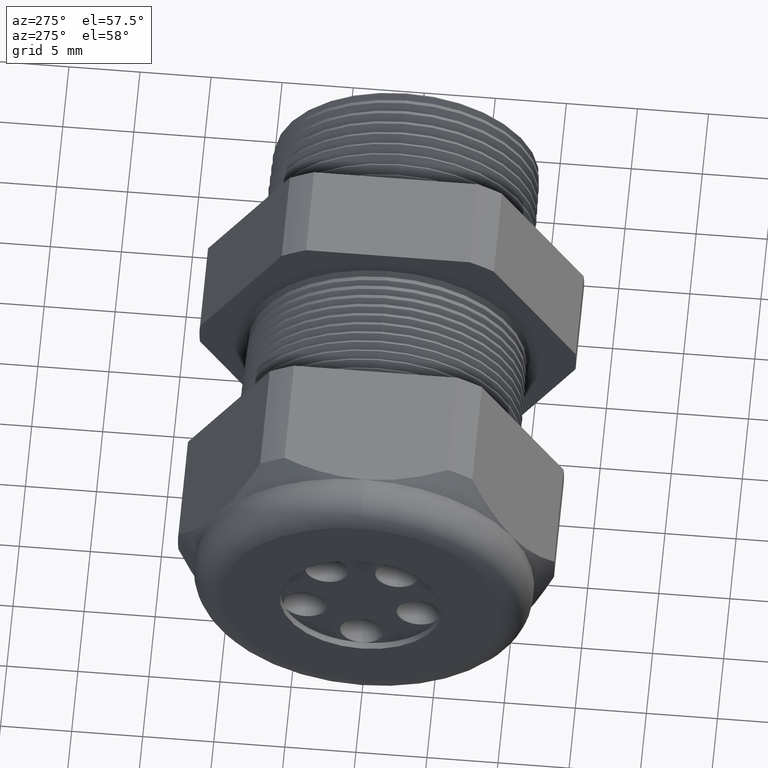
[diagram: clean part render]
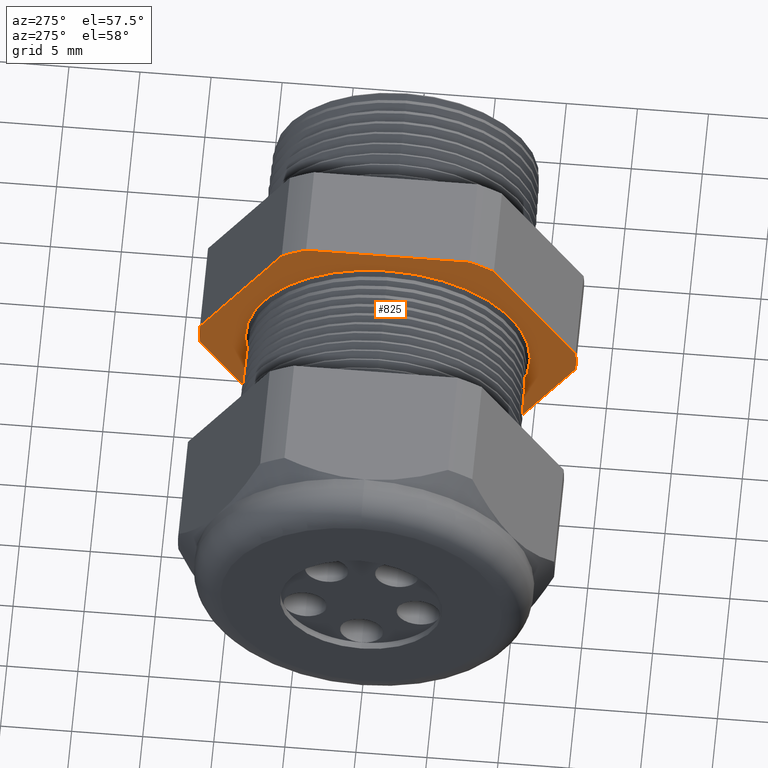
[diagram: same view with one face highlighted and labeled with its STEP entity id]
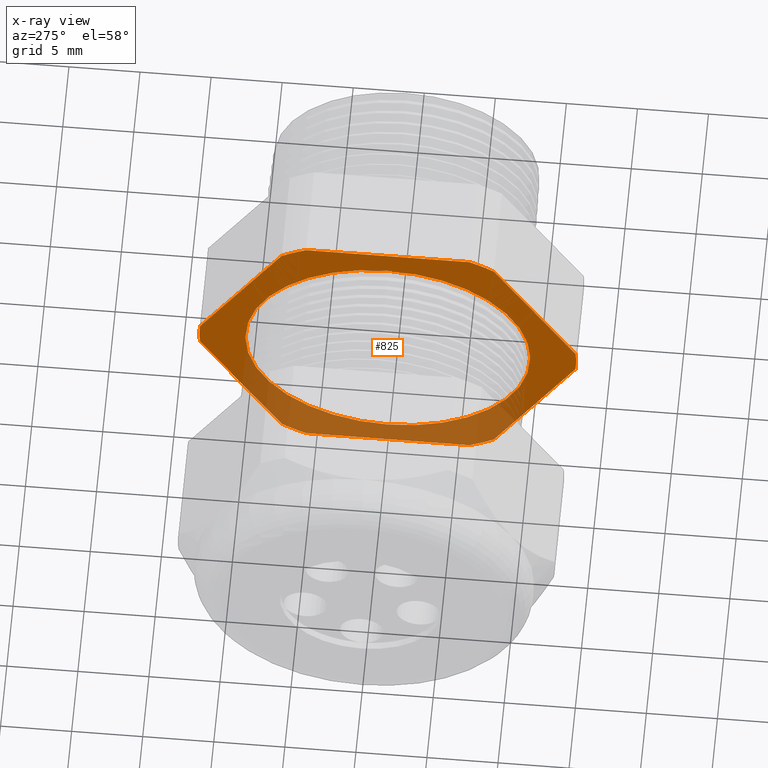
[diagram: x-ray of the same camera — body ghosted, the highlighted face saturated]
A machine part, auxiliary view. The second image highlights one B-rep face of the part: STEP entity #825.
The next image is the same camera in x-ray: the body ghosted, the highlighted face saturated — about 35% of this face is hidden behind the body in this view.
In plain terms, the highlighted planar face has unit normal (-1, 0, 0).
Its self-contained STEP definition (entity closure, byte-faithful):
#773 = EDGE_LOOP ( 'NONE', ( #826, #828 ) ) ;
#811 = VERTEX_POINT ( 'NONE', #3488 ) ;
#812 = ORIENTED_EDGE ( 'NONE', *, *, #813, .T. ) ;
#813 = EDGE_CURVE ( 'NONE', #811, #814, #3487, .T. ) ;
#814 = VERTEX_POINT ( 'NONE', #3482 ) ;
#815 = ORIENTED_EDGE ( 'NONE', *, *, #816, .T. ) ;
#816 = EDGE_CURVE ( 'NONE', #814, #817, #3481, .T. ) ;
#817 = VERTEX_POINT ( 'NONE', #3477 ) ;
#818 = ORIENTED_EDGE ( 'NONE', *, *, #819, .T. ) ;
#819 = EDGE_CURVE ( 'NONE', #817, #820, #3475, .T. ) ;
#820 = VERTEX_POINT ( 'NONE', #3476 ) ;
#821 = ORIENTED_EDGE ( 'NONE', *, *, #822, .T. ) ;
#822 = EDGE_CURVE ( 'NONE', #820, #823, #3536, .T. ) ;
#823 = VERTEX_POINT ( 'NONE', #3532 ) ;
#825 = ADVANCED_FACE ( 'NONE', ( #3531, #3530 ), #3529, .T. ) ;
#826 = ORIENTED_EDGE ( 'NONE', *, *, #827, .F. ) ;
#827 = EDGE_CURVE ( 'NONE', #1380, #1376, #3524, .T. ) ;
#828 = ORIENTED_EDGE ( 'NONE', *, *, #1371, .F. ) ;
#829 = EDGE_LOOP ( 'NONE', ( #830, #834, #837, #812, #815, #818, #821, #880, #883, #886, #889, #892 ) ) ;
#830 = ORIENTED_EDGE ( 'NONE', *, *, #831, .T. ) ;
#831 = EDGE_CURVE ( 'NONE', #832, #833, #3519, .T. ) ;
#832 = VERTEX_POINT ( 'NONE', #3515 ) ;
#833 = VERTEX_POINT ( 'NONE', #3514 ) ;
#834 = ORIENTED_EDGE ( 'NONE', *, *, #835, .T. ) ;
#835 = EDGE_CURVE ( 'NONE', #833, #836, #3513, .T. ) ;
#836 = VERTEX_POINT ( 'NONE', #3508 ) ;
#837 = ORIENTED_EDGE ( 'NONE', *, *, #838, .T. ) ;
#838 = EDGE_CURVE ( 'NONE', #836, #811, #3507, .T. ) ;
#880 = ORIENTED_EDGE ( 'NONE', *, *, #881, .T. ) ;
#881 = EDGE_CURVE ( 'NONE', #823, #882, #3580, .T. ) ;
#882 = VERTEX_POINT ( 'NONE', #3574 ) ;
#883 = ORIENTED_EDGE ( 'NONE', *, *, #884, .T. ) ;
#884 = EDGE_CURVE ( 'NONE', #882, #885, #3573, .T. ) ;
#885 = VERTEX_POINT ( 'NONE', #3569 ) ;
#886 = ORIENTED_EDGE ( 'NONE', *, *, #887, .T. ) ;
#887 = EDGE_CURVE ( 'NONE', #885, #888, #3633, .T. ) ;
#888 = VERTEX_POINT ( 'NONE', #3628 ) ;
#889 = ORIENTED_EDGE ( 'NONE', *, *, #890, .T. ) ;
#890 = EDGE_CURVE ( 'NONE', #888, #891, #3627, .T. ) ;
#891 = VERTEX_POINT ( 'NONE', #3623 ) ;
#892 = ORIENTED_EDGE ( 'NONE', *, *, #893, .T. ) ;
#893 = EDGE_CURVE ( 'NONE', #891, #832, #3622, .T. ) ;
#1371 = EDGE_CURVE ( 'NONE', #1376, #1380, #4271, .T. ) ;
#1376 = VERTEX_POINT ( 'NONE', #4256 ) ;
#1380 = VERTEX_POINT ( 'NONE', #4251 ) ;
#3471 = DIRECTION ( 'NONE',  ( 0.0000000000000000000, 0.0000000000000000000, 1.000000000000000000 ) ) ;
#3472 = DIRECTION ( 'NONE',  ( -1.000000000000000000, 0.0000000000000000000, 0.0000000000000000000 ) ) ;
#3473 = CARTESIAN_POINT ( 'NONE',  ( -0.5659055118110234400, 0.0000000000000000000, 0.0000000000000000000 ) ) ;
#3474 = AXIS2_PLACEMENT_3D ( 'NONE', #3473, #3472, #3471 ) ;
#3475 = CIRCLE ( 'NONE', #3474, 0.5217000000000000500 ) ;
#3476 = CARTESIAN_POINT ( 'NONE',  ( -0.5659055118110234400, -0.2938165587564942600, -0.4310947921287053300 ) ) ;
#3477 = CARTESIAN_POINT ( 'NONE',  ( -0.5659055118110234400, -0.2264307620443830900, -0.4700000000000000300 ) ) ;
#3478 = DIRECTION ( 'NONE',  ( 0.0000000000000000000, -1.000000000000000000, 0.0000000000000000000 ) ) ;
#3479 = VECTOR ( 'NONE', #3478, 39.37007874015748100 ) ;
#3480 = CARTESIAN_POINT ( 'NONE',  ( -0.5659055118110234400, 0.9399999999999999500, -0.4700000000000000300 ) ) ;
#3481 = LINE ( 'NONE', #3480, #3479 ) ;
#3482 = CARTESIAN_POINT ( 'NONE',  ( -0.5659055118110234400, 0.2264307620443831200, -0.4700000000000000300 ) ) ;
#3483 = DIRECTION ( 'NONE',  ( 0.0000000000000000000, 0.0000000000000000000, 1.000000000000000000 ) ) ;
#3484 = DIRECTION ( 'NONE',  ( -1.000000000000000000, 0.0000000000000000000, 0.0000000000000000000 ) ) ;
#3485 = CARTESIAN_POINT ( 'NONE',  ( -0.5659055118110234400, 0.0000000000000000000, 0.0000000000000000000 ) ) ;
#3486 = AXIS2_PLACEMENT_3D ( 'NONE', #3485, #3484, #3483 ) ;
#3487 = CIRCLE ( 'NONE', #3486, 0.5217000000000000500 ) ;
#3488 = CARTESIAN_POINT ( 'NONE',  ( -0.5659055118110234400, 0.2938165587564949800, -0.4310947921287048800 ) ) ;
#3504 = DIRECTION ( 'NONE',  ( 0.0000000000000000000, -0.4999999999999998300, -0.8660254037844388200 ) ) ;
#3505 = VECTOR ( 'NONE', #3504, 39.37007874015748100 ) ;
#3506 = CARTESIAN_POINT ( 'NONE',  ( -0.5659055118110234400, 0.6420319397786862200, 0.1720319397786860500 ) ) ;
#3507 = LINE ( 'NONE', #3506, #3505 ) ;
#3508 = CARTESIAN_POINT ( 'NONE',  ( -0.5659055118110234400, 0.5202473208008777700, -0.03890520787129496400 ) ) ;
#3509 = DIRECTION ( 'NONE',  ( 0.0000000000000000000, 0.0000000000000000000, 1.000000000000000000 ) ) ;
#3510 = DIRECTION ( 'NONE',  ( -1.000000000000000000, 0.0000000000000000000, 0.0000000000000000000 ) ) ;
#3511 = CARTESIAN_POINT ( 'NONE',  ( -0.5659055118110234400, 0.0000000000000000000, 0.0000000000000000000 ) ) ;
#3512 = AXIS2_PLACEMENT_3D ( 'NONE', #3511, #3510, #3509 ) ;
#3513 = CIRCLE ( 'NONE', #3512, 0.5217000000000000500 ) ;
#3514 = CARTESIAN_POINT ( 'NONE',  ( -0.5659055118110234400, 0.5202473208008776600, 0.03890520787129531800 ) ) ;
#3515 = CARTESIAN_POINT ( 'NONE',  ( -0.5659055118110234400, 0.2938165587564947600, 0.4310947921287048800 ) ) ;
#3516 = DIRECTION ( 'NONE',  ( 0.0000000000000000000, 0.5000000000000001100, -0.8660254037844386000 ) ) ;
#3517 = VECTOR ( 'NONE', #3516, 39.37007874015748100 ) ;
#3518 = CARTESIAN_POINT ( 'NONE',  ( -0.5659055118110234400, 0.6420319397786862200, -0.1720319397786861100 ) ) ;
#3519 = LINE ( 'NONE', #3518, #3517 ) ;
#3520 = DIRECTION ( 'NONE',  ( 0.0000000000000000000, 0.0000000000000000000, 1.000000000000000000 ) ) ;
#3521 = DIRECTION ( 'NONE',  ( -1.000000000000000000, 0.0000000000000000000, 0.0000000000000000000 ) ) ;
#3522 = CARTESIAN_POINT ( 'NONE',  ( -0.5659055118110234400, 0.0000000000000000000, 0.0000000000000000000 ) ) ;
#3523 = AXIS2_PLACEMENT_3D ( 'NONE', #3522, #3521, #3520 ) ;
#3524 = CIRCLE ( 'NONE', #3523, 0.3944886528701452800 ) ;
#3525 = DIRECTION ( 'NONE',  ( 0.0000000000000000000, 0.0000000000000000000, 1.000000000000000000 ) ) ;
#3526 = DIRECTION ( 'NONE',  ( -1.000000000000000000, 0.0000000000000000000, 0.0000000000000000000 ) ) ;
#3527 = CARTESIAN_POINT ( 'NONE',  ( -0.5659055118110234400, 0.9399999999999999500, 0.0000000000000000000 ) ) ;
#3528 = AXIS2_PLACEMENT_3D ( 'NONE', #3527, #3526, #3525 ) ;
#3529 = PLANE ( 'NONE',  #3528 ) ;
#3530 = FACE_OUTER_BOUND ( 'NONE', #829, .T. ) ;
#3531 = FACE_BOUND ( 'NONE', #773, .T. ) ;
#3532 = CARTESIAN_POINT ( 'NONE',  ( -0.5659055118110234400, -0.5202473208008777700, -0.03890520787129495000 ) ) ;
#3533 = DIRECTION ( 'NONE',  ( 0.0000000000000000000, -0.5000000000000001100, 0.8660254037844386000 ) ) ;
#3534 = VECTOR ( 'NONE', #3533, 39.37007874015748900 ) ;
#3535 = CARTESIAN_POINT ( 'NONE',  ( -0.5659055118110234400, -0.1720319397786862800, -0.6420319397786864400 ) ) ;
#3536 = LINE ( 'NONE', #3535, #3534 ) ;
#3569 = CARTESIAN_POINT ( 'NONE',  ( -0.5659055118110234400, -0.2938165587564945900, 0.4310947921287050500 ) ) ;
#3570 = DIRECTION ( 'NONE',  ( 0.0000000000000000000, 0.4999999999999998300, 0.8660254037844388200 ) ) ;
#3571 = VECTOR ( 'NONE', #3570, 39.37007874015748100 ) ;
#3572 = CARTESIAN_POINT ( 'NONE',  ( -0.5659055118110234400, -0.1720319397786862800, 0.6420319397786858900 ) ) ;
#3573 = LINE ( 'NONE', #3572, #3571 ) ;
#3574 = CARTESIAN_POINT ( 'NONE',  ( -0.5659055118110234400, -0.5202473208008777700, 0.03890520787129464500 ) ) ;
#3576 = DIRECTION ( 'NONE',  ( 0.0000000000000000000, 0.0000000000000000000, 1.000000000000000000 ) ) ;
#3577 = DIRECTION ( 'NONE',  ( -1.000000000000000000, 0.0000000000000000000, 0.0000000000000000000 ) ) ;
#3578 = CARTESIAN_POINT ( 'NONE',  ( -0.5659055118110234400, 0.0000000000000000000, 0.0000000000000000000 ) ) ;
#3579 = AXIS2_PLACEMENT_3D ( 'NONE', #3578, #3577, #3576 ) ;
#3580 = CIRCLE ( 'NONE', #3579, 0.5217000000000000500 ) ;
#3618 = DIRECTION ( 'NONE',  ( 0.0000000000000000000, 0.0000000000000000000, 1.000000000000000000 ) ) ;
#3619 = DIRECTION ( 'NONE',  ( -1.000000000000000000, 0.0000000000000000000, 0.0000000000000000000 ) ) ;
#3620 = CARTESIAN_POINT ( 'NONE',  ( -0.5659055118110234400, 0.0000000000000000000, 0.0000000000000000000 ) ) ;
#3621 = AXIS2_PLACEMENT_3D ( 'NONE', #3620, #3619, #3618 ) ;
#3622 = CIRCLE ( 'NONE', #3621, 0.5217000000000000500 ) ;
#3623 = CARTESIAN_POINT ( 'NONE',  ( -0.5659055118110234400, 0.2264307620443832800, 0.4699999999999999200 ) ) ;
#3624 = DIRECTION ( 'NONE',  ( 0.0000000000000000000, 1.000000000000000000, 0.0000000000000000000 ) ) ;
#3625 = VECTOR ( 'NONE', #3624, 39.37007874015748100 ) ;
#3626 = CARTESIAN_POINT ( 'NONE',  ( -0.5659055118110234400, 0.9399999999999999500, 0.4699999999999999200 ) ) ;
#3627 = LINE ( 'NONE', #3626, #3625 ) ;
#3628 = CARTESIAN_POINT ( 'NONE',  ( -0.5659055118110234400, -0.2264307620443835300, 0.4699999999999997000 ) ) ;
#3629 = DIRECTION ( 'NONE',  ( 0.0000000000000000000, 0.0000000000000000000, 1.000000000000000000 ) ) ;
#3630 = DIRECTION ( 'NONE',  ( -1.000000000000000000, 0.0000000000000000000, 0.0000000000000000000 ) ) ;
#3631 = CARTESIAN_POINT ( 'NONE',  ( -0.5659055118110234400, 0.0000000000000000000, 0.0000000000000000000 ) ) ;
#3632 = AXIS2_PLACEMENT_3D ( 'NONE', #3631, #3630, #3629 ) ;
#3633 = CIRCLE ( 'NONE', #3632, 0.5217000000000000500 ) ;
#4251 = CARTESIAN_POINT ( 'NONE',  ( -0.5659055118110234400, 0.0000000000000000000, 0.3944886528701452300 ) ) ;
#4256 = CARTESIAN_POINT ( 'NONE',  ( -0.5659055118110234400, 4.831092660373746600E-017, -0.3944886528701452300 ) ) ;
#4267 = DIRECTION ( 'NONE',  ( 0.0000000000000000000, 0.0000000000000000000, 1.000000000000000000 ) ) ;
#4268 = DIRECTION ( 'NONE',  ( -1.000000000000000000, 0.0000000000000000000, 0.0000000000000000000 ) ) ;
#4269 = CARTESIAN_POINT ( 'NONE',  ( -0.5659055118110234400, 0.0000000000000000000, 0.0000000000000000000 ) ) ;
#4270 = AXIS2_PLACEMENT_3D ( 'NONE', #4269, #4268, #4267 ) ;
#4271 = CIRCLE ( 'NONE', #4270, 0.3944886528701452800 ) ;